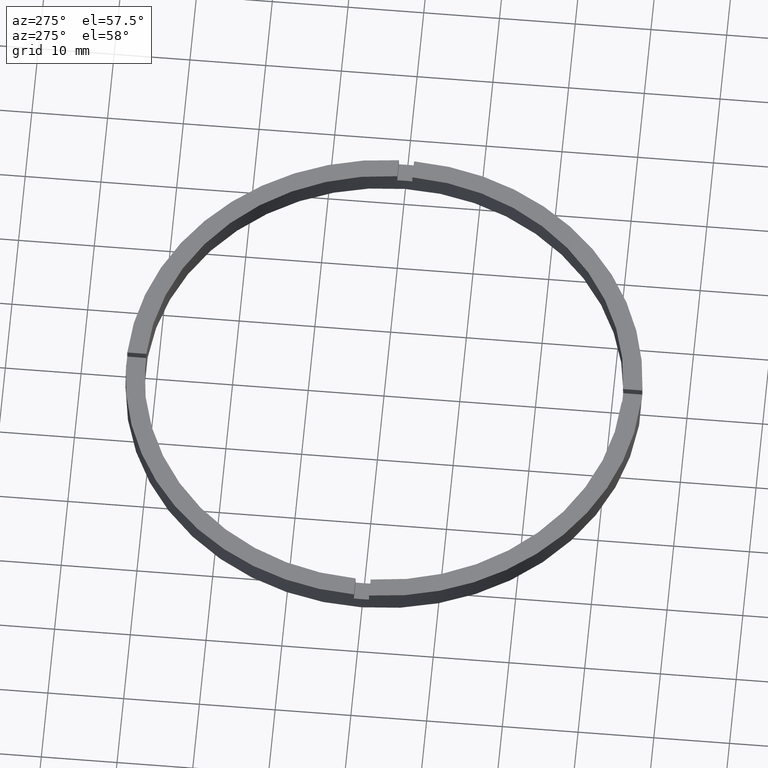
[diagram: clean part render]
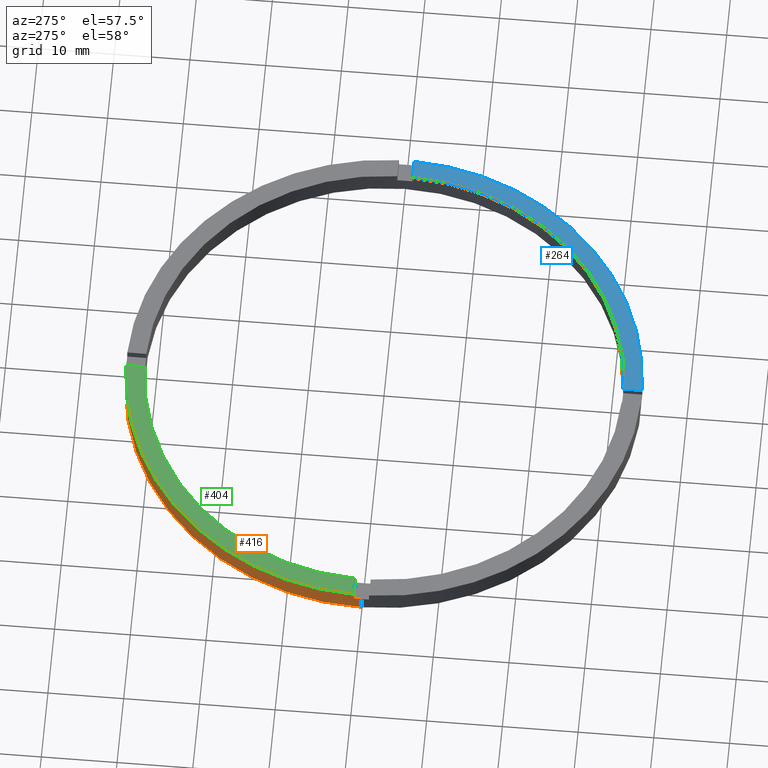
[diagram: same view with three faces highlighted in distinct colors, each labeled with its STEP entity id]
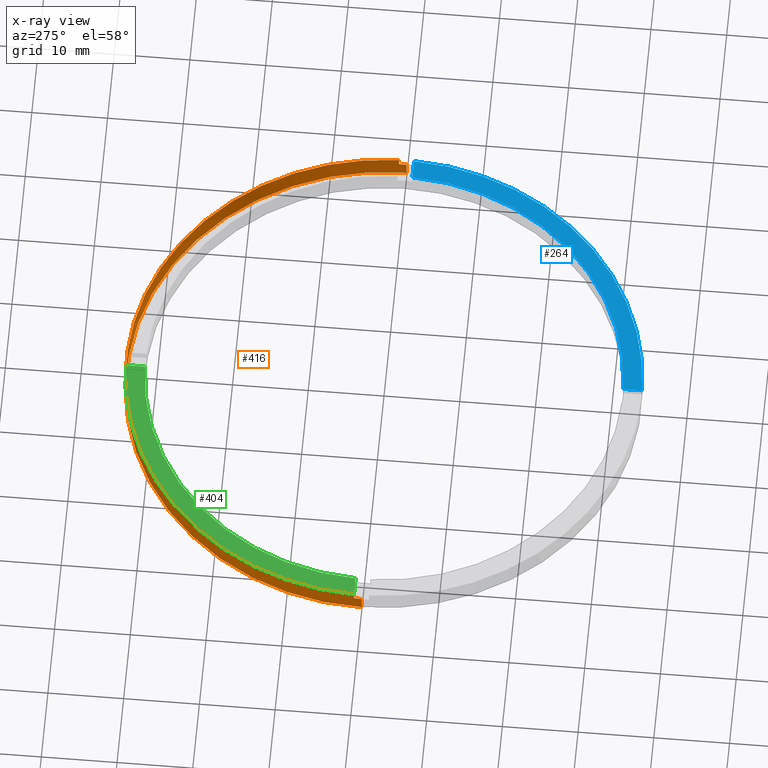
[diagram: x-ray of the same camera — body ghosted, the three highlighted faces saturated]
A machine part, auxiliary view with three faces highlighted in distinct colors.
The next image is the same camera in x-ray (body ghosted, the three faces saturated) — at least one of them is partly hidden behind the body in this view.
Their STEP definitions:

[orange] entity #416 — the highlighted cylindrical surface (partial cylindrical patch) has radius 34 mm, axis along (-0, -0, -1).
#1 = EDGE_CURVE ( 'NONE', #319, #489, #498, .T. ) ;
#4 = DIRECTION ( 'NONE',  ( 0.000000000000000000, 0.000000000000000000, 1.000000000000000000 ) ) ;
#15 = EDGE_LOOP ( 'NONE', ( #677, #175, #229, #56, #176, #446, #306, #116, #249, #704, #679, #44 ) ) ;
#27 = DIRECTION ( 'NONE',  ( -0.000000000000000000, -0.000000000000000000, -1.000000000000000000 ) ) ;
#31 = EDGE_CURVE ( 'NONE', #319, #673, #491, .T. ) ;
#32 = EDGE_CURVE ( 'NONE', #594, #302, #744, .T. ) ;
#44 = ORIENTED_EDGE ( 'NONE', *, *, #417, .T. ) ;
#52 = CARTESIAN_POINT ( 'NONE',  ( 34.00000000000000000, 4.163799117101000559E-15, 2.000000000000000000 ) ) ;
#56 = ORIENTED_EDGE ( 'NONE', *, *, #453, .F. ) ;
#68 = VERTEX_POINT ( 'NONE', #334 ) ;
#70 = EDGE_CURVE ( 'NONE', #329, #123, #733, .T. ) ;
#94 = DIRECTION ( 'NONE',  ( 0.000000000000000000, 0.000000000000000000, 1.000000000000000000 ) ) ;
#99 = VECTOR ( 'NONE', #686, 1000.000000000000000 ) ;
#101 = LINE ( 'NONE', #349, #396 ) ;
#103 = DIRECTION ( 'NONE',  ( -1.000000000000000000, 0.000000000000000000, 0.000000000000000000 ) ) ;
#116 = ORIENTED_EDGE ( 'NONE', *, *, #70, .T. ) ;
#118 = CIRCLE ( 'NONE', #499, 34.00000000000000000 ) ;
#122 = CYLINDRICAL_SURFACE ( 'NONE', #431, 34.00000000000000000 ) ;
#123 = VERTEX_POINT ( 'NONE', #196 ) ;
#134 = EDGE_CURVE ( 'NONE', #329, #673, #762, .T. ) ;
#165 = CARTESIAN_POINT ( 'NONE',  ( -33.98529093593285921, 0.9999999999999735767, 3.000000000000000000 ) ) ;
#168 = VECTOR ( 'NONE', #4, 1000.000000000000000 ) ;
#170 = CARTESIAN_POINT ( 'NONE',  ( 0.000000000000000000, 0.000000000000000000, 0.000000000000000000 ) ) ;
#175 = ORIENTED_EDGE ( 'NONE', *, *, #378, .T. ) ;
#176 = ORIENTED_EDGE ( 'NONE', *, *, #1, .F. ) ;
#188 = CARTESIAN_POINT ( 'NONE',  ( 0.000000000000000000, 0.000000000000000000, 2.000000000000000000 ) ) ;
#194 = EDGE_CURVE ( 'NONE', #449, #123, #521, .T. ) ;
#196 = CARTESIAN_POINT ( 'NONE',  ( -1.000000000000024869, 33.98529093593285211, 2.000000000000000000 ) ) ;
#202 = DIRECTION ( 'NONE',  ( 0.000000000000000000, 0.000000000000000000, 1.000000000000000000 ) ) ;
#208 = CARTESIAN_POINT ( 'NONE',  ( -1.000000000000024869, 33.98529093593285211, 3.000000000000000000 ) ) ;
#210 = DIRECTION ( 'NONE',  ( 1.000000000000000000, 0.000000000000000000, 0.000000000000000000 ) ) ;
#214 = VERTEX_POINT ( 'NONE', #757 ) ;
#216 = DIRECTION ( 'NONE',  ( 1.000000000000000000, 0.000000000000000000, 0.000000000000000000 ) ) ;
#227 = VECTOR ( 'NONE', #27, 1000.000000000000000 ) ;
#229 = ORIENTED_EDGE ( 'NONE', *, *, #315, .T. ) ;
#249 = ORIENTED_EDGE ( 'NONE', *, *, #194, .F. ) ;
#259 = AXIS2_PLACEMENT_3D ( 'NONE', #691, #202, #288 ) ;
#261 = CARTESIAN_POINT ( 'NONE',  ( 0.000000000000000000, 0.000000000000000000, 3.000000000000000000 ) ) ;
#288 = DIRECTION ( 'NONE',  ( 1.000000000000000000, 0.000000000000000000, 0.000000000000000000 ) ) ;
#301 = DIRECTION ( 'NONE',  ( 1.000000000000000000, 0.000000000000000000, 0.000000000000000000 ) ) ;
#302 = VERTEX_POINT ( 'NONE', #488 ) ;
#306 = ORIENTED_EDGE ( 'NONE', *, *, #134, .F. ) ;
#315 = EDGE_CURVE ( 'NONE', #214, #68, #118, .T. ) ;
#319 = VERTEX_POINT ( 'NONE', #597 ) ;
#329 = VERTEX_POINT ( 'NONE', #208 ) ;
#334 = CARTESIAN_POINT ( 'NONE',  ( -34.00000000000000000, 0.000000000000000000, 0.000000000000000000 ) ) ;
#344 = AXIS2_PLACEMENT_3D ( 'NONE', #430, #763, #216 ) ;
#349 = CARTESIAN_POINT ( 'NONE',  ( 34.00000000000000000, 4.163799117101000559E-15, 3.000000000000000000 ) ) ;
#377 = LINE ( 'NONE', #432, #383 ) ;
#378 = EDGE_CURVE ( 'NONE', #698, #214, #101, .T. ) ;
#379 = DIRECTION ( 'NONE',  ( 0.000000000000000000, 0.000000000000000000, 1.000000000000000000 ) ) ;
#383 = VECTOR ( 'NONE', #616, 1000.000000000000000 ) ;
#396 = VECTOR ( 'NONE', #435, 1000.000000000000000 ) ;
#413 = VERTEX_POINT ( 'NONE', #718 ) ;
#416 = ADVANCED_FACE ( 'NONE', ( #656 ), #122, .T. ) ;
#417 = EDGE_CURVE ( 'NONE', #594, #413, #377, .T. ) ;
#423 = CARTESIAN_POINT ( 'NONE',  ( -1.000000000000024869, 33.98529093593285211, 3.000000000000000000 ) ) ;
#430 = CARTESIAN_POINT ( 'NONE',  ( 0.000000000000000000, 0.000000000000000000, 3.000000000000000000 ) ) ;
#431 = AXIS2_PLACEMENT_3D ( 'NONE', #533, #771, #103 ) ;
#432 = CARTESIAN_POINT ( 'NONE',  ( 33.98529093593285921, 0.9999999999998419042, 3.000000000000000000 ) ) ;
#435 = DIRECTION ( 'NONE',  ( -0.000000000000000000, -0.000000000000000000, -1.000000000000000000 ) ) ;
#437 = LINE ( 'NONE', #734, #168 ) ;
#439 = AXIS2_PLACEMENT_3D ( 'NONE', #261, #736, #301 ) ;
#446 = ORIENTED_EDGE ( 'NONE', *, *, #31, .T. ) ;
#449 = VERTEX_POINT ( 'NONE', #478 ) ;
#453 = EDGE_CURVE ( 'NONE', #489, #68, #653, .T. ) ;
#455 = AXIS2_PLACEMENT_3D ( 'NONE', #188, #379, #495 ) ;
#474 = CARTESIAN_POINT ( 'NONE',  ( -34.00000000000000000, 0.000000000000000000, 2.000000000000000000 ) ) ;
#478 = CARTESIAN_POINT ( 'NONE',  ( 0.9999999999999751310, 33.98529093593285921, 2.000000000000000000 ) ) ;
#488 = CARTESIAN_POINT ( 'NONE',  ( 0.9999999999999751310, 33.98529093593285921, 3.000000000000000000 ) ) ;
#489 = VERTEX_POINT ( 'NONE', #474 ) ;
#491 = LINE ( 'NONE', #165, #507 ) ;
#495 = DIRECTION ( 'NONE',  ( 1.000000000000000000, 0.000000000000000000, 0.000000000000000000 ) ) ;
#498 = CIRCLE ( 'NONE', #455, 34.00000000000000000 ) ;
#499 = AXIS2_PLACEMENT_3D ( 'NONE', #170, #755, #538 ) ;
#507 = VECTOR ( 'NONE', #94, 1000.000000000000000 ) ;
#521 = CIRCLE ( 'NONE', #775, 34.00000000000000000 ) ;
#533 = CARTESIAN_POINT ( 'NONE',  ( 0.000000000000000000, 0.000000000000000000, 3.000000000000000000 ) ) ;
#538 = DIRECTION ( 'NONE',  ( 1.000000000000000000, 0.000000000000000000, 0.000000000000000000 ) ) ;
#549 = CARTESIAN_POINT ( 'NONE',  ( 0.000000000000000000, 0.000000000000000000, 2.000000000000000000 ) ) ;
#594 = VERTEX_POINT ( 'NONE', #667 ) ;
#597 = CARTESIAN_POINT ( 'NONE',  ( -33.98529093593285921, 0.9999999999999735767, 2.000000000000000000 ) ) ;
#599 = CARTESIAN_POINT ( 'NONE',  ( -34.00000000000000000, 0.000000000000000000, 3.000000000000000000 ) ) ;
#610 = EDGE_CURVE ( 'NONE', #698, #413, #694, .T. ) ;
#616 = DIRECTION ( 'NONE',  ( -0.000000000000000000, -0.000000000000000000, -1.000000000000000000 ) ) ;
#653 = LINE ( 'NONE', #599, #99 ) ;
#656 = FACE_OUTER_BOUND ( 'NONE', #15, .T. ) ;
#667 = CARTESIAN_POINT ( 'NONE',  ( 33.98529093593285921, 0.9999999999998419042, 3.000000000000000000 ) ) ;
#673 = VERTEX_POINT ( 'NONE', #731 ) ;
#677 = ORIENTED_EDGE ( 'NONE', *, *, #610, .F. ) ;
#679 = ORIENTED_EDGE ( 'NONE', *, *, #32, .F. ) ;
#683 = EDGE_CURVE ( 'NONE', #449, #302, #437, .T. ) ;
#686 = DIRECTION ( 'NONE',  ( -0.000000000000000000, -0.000000000000000000, -1.000000000000000000 ) ) ;
#691 = CARTESIAN_POINT ( 'NONE',  ( 0.000000000000000000, 0.000000000000000000, 2.000000000000000000 ) ) ;
#694 = CIRCLE ( 'NONE', #259, 34.00000000000000000 ) ;
#698 = VERTEX_POINT ( 'NONE', #52 ) ;
#704 = ORIENTED_EDGE ( 'NONE', *, *, #683, .T. ) ;
#714 = DIRECTION ( 'NONE',  ( 0.000000000000000000, -0.000000000000000000, 1.000000000000000000 ) ) ;
#718 = CARTESIAN_POINT ( 'NONE',  ( 33.98529093593285921, 0.9999999999998419042, 2.000000000000000000 ) ) ;
#731 = CARTESIAN_POINT ( 'NONE',  ( -33.98529093593285921, 0.9999999999999735767, 3.000000000000000000 ) ) ;
#733 = LINE ( 'NONE', #423, #227 ) ;
#734 = CARTESIAN_POINT ( 'NONE',  ( 0.9999999999999751310, 33.98529093593285921, 3.000000000000000000 ) ) ;
#736 = DIRECTION ( 'NONE',  ( 0.000000000000000000, 0.000000000000000000, 1.000000000000000000 ) ) ;
#744 = CIRCLE ( 'NONE', #344, 34.00000000000000000 ) ;
#755 = DIRECTION ( 'NONE',  ( 0.000000000000000000, 0.000000000000000000, 1.000000000000000000 ) ) ;
#757 = CARTESIAN_POINT ( 'NONE',  ( 34.00000000000000000, 4.163799117101000559E-15, 0.000000000000000000 ) ) ;
#762 = CIRCLE ( 'NONE', #439, 34.00000000000000000 ) ;
#763 = DIRECTION ( 'NONE',  ( 0.000000000000000000, 0.000000000000000000, 1.000000000000000000 ) ) ;
#771 = DIRECTION ( 'NONE',  ( -0.000000000000000000, -0.000000000000000000, -1.000000000000000000 ) ) ;
#775 = AXIS2_PLACEMENT_3D ( 'NONE', #549, #714, #210 ) ;

[blue] entity #264 — the highlighted planar face has unit normal (0, 0, 1).
#2 = PLANE ( 'NONE',  #467 ) ;
#22 = CARTESIAN_POINT ( 'NONE',  ( 31.48412298286232414, -1.000000000000158318, 3.000000000000000000 ) ) ;
#25 = DIRECTION ( 'NONE',  ( 1.000000000000000000, 0.000000000000000000, 0.000000000000000000 ) ) ;
#50 = VERTEX_POINT ( 'NONE', #22 ) ;
#53 = EDGE_LOOP ( 'NONE', ( #573, #411, #242, #448 ) ) ;
#75 = DIRECTION ( 'NONE',  ( 0.000000000000000000, 0.000000000000000000, 1.000000000000000000 ) ) ;
#85 = AXIS2_PLACEMENT_3D ( 'NONE', #272, #75, #222 ) ;
#102 = CIRCLE ( 'NONE', #85, 34.00000000000000000 ) ;
#112 = EDGE_CURVE ( 'NONE', #395, #180, #218, .T. ) ;
#137 = CARTESIAN_POINT ( 'NONE',  ( 0.000000000000000000, 0.000000000000000000, 3.000000000000000000 ) ) ;
#172 = AXIS2_PLACEMENT_3D ( 'NONE', #185, #777, #25 ) ;
#180 = VERTEX_POINT ( 'NONE', #405 ) ;
#184 = EDGE_CURVE ( 'NONE', #50, #384, #770, .T. ) ;
#185 = CARTESIAN_POINT ( 'NONE',  ( 0.000000000000000000, 0.000000000000000000, 3.000000000000000000 ) ) ;
#192 = DIRECTION ( 'NONE',  ( 1.000000000000000000, 0.000000000000000000, -0.000000000000000000 ) ) ;
#218 = LINE ( 'NONE', #697, #493 ) ;
#222 = DIRECTION ( 'NONE',  ( 1.000000000000000000, 0.000000000000000000, 0.000000000000000000 ) ) ;
#242 = ORIENTED_EDGE ( 'NONE', *, *, #112, .F. ) ;
#264 = ADVANCED_FACE ( 'NONE', ( #374 ), #2, .T. ) ;
#272 = CARTESIAN_POINT ( 'NONE',  ( 0.000000000000000000, 0.000000000000000000, 3.000000000000000000 ) ) ;
#312 = DIRECTION ( 'NONE',  ( 1.000000000000000000, 6.505213034913025371E-17, 0.000000000000000000 ) ) ;
#321 = EDGE_CURVE ( 'NONE', #395, #384, #102, .T. ) ;
#374 = FACE_OUTER_BOUND ( 'NONE', #53, .T. ) ;
#384 = VERTEX_POINT ( 'NONE', #475 ) ;
#395 = VERTEX_POINT ( 'NONE', #672 ) ;
#405 = CARTESIAN_POINT ( 'NONE',  ( 0.9999999999998391287, -31.48412298286233479, 3.000000000000000000 ) ) ;
#411 = ORIENTED_EDGE ( 'NONE', *, *, #523, .F. ) ;
#448 = ORIENTED_EDGE ( 'NONE', *, *, #321, .T. ) ;
#459 = CARTESIAN_POINT ( 'NONE',  ( 23.99999999999999289, -1.000000000000158762, 3.000000000000000000 ) ) ;
#467 = AXIS2_PLACEMENT_3D ( 'NONE', #137, #543, #192 ) ;
#475 = CARTESIAN_POINT ( 'NONE',  ( 33.98529093593285211, -1.000000000000158096, 3.000000000000000000 ) ) ;
#493 = VECTOR ( 'NONE', #527, 1000.000000000000000 ) ;
#519 = VECTOR ( 'NONE', #312, 1000.000000000000000 ) ;
#523 = EDGE_CURVE ( 'NONE', #180, #50, #646, .T. ) ;
#527 = DIRECTION ( 'NONE',  ( -1.301042606982605074E-16, 1.000000000000000000, -0.000000000000000000 ) ) ;
#543 = DIRECTION ( 'NONE',  ( 0.000000000000000000, 0.000000000000000000, 1.000000000000000000 ) ) ;
#573 = ORIENTED_EDGE ( 'NONE', *, *, #184, .F. ) ;
#646 = CIRCLE ( 'NONE', #172, 31.50000000000000000 ) ;
#672 = CARTESIAN_POINT ( 'NONE',  ( 0.9999999999998393507, -33.98529093593285921, 3.000000000000000000 ) ) ;
#697 = CARTESIAN_POINT ( 'NONE',  ( 0.9999999999998380185, -24.00000000000018119, 3.000000000000000000 ) ) ;
#770 = LINE ( 'NONE', #459, #519 ) ;
#777 = DIRECTION ( 'NONE',  ( 0.000000000000000000, 0.000000000000000000, 1.000000000000000000 ) ) ;

[green] entity #404 — the highlighted planar face has unit normal (0, 0, 1).
#134 = EDGE_CURVE ( 'NONE', #329, #673, #762, .T. ) ;
#161 = EDGE_CURVE ( 'NONE', #329, #598, #231, .T. ) ;
#173 = ORIENTED_EDGE ( 'NONE', *, *, #134, .T. ) ;
#197 = AXIS2_PLACEMENT_3D ( 'NONE', #552, #280, #663 ) ;
#200 = CARTESIAN_POINT ( 'NONE',  ( -1.000000000000024869, 24.00000000000000000, 3.000000000000000000 ) ) ;
#201 = EDGE_CURVE ( 'NONE', #598, #513, #772, .T. ) ;
#206 = AXIS2_PLACEMENT_3D ( 'NONE', #320, #414, #468 ) ;
#208 = CARTESIAN_POINT ( 'NONE',  ( -1.000000000000024869, 33.98529093593285211, 3.000000000000000000 ) ) ;
#231 = LINE ( 'NONE', #200, #511 ) ;
#261 = CARTESIAN_POINT ( 'NONE',  ( 0.000000000000000000, 0.000000000000000000, 3.000000000000000000 ) ) ;
#263 = DIRECTION ( 'NONE',  ( -0.000000000000000000, -1.000000000000000000, -0.000000000000000000 ) ) ;
#274 = CARTESIAN_POINT ( 'NONE',  ( -31.48412298286233124, 0.9999999999999742428, 3.000000000000000000 ) ) ;
#280 = DIRECTION ( 'NONE',  ( 0.000000000000000000, 0.000000000000000000, 1.000000000000000000 ) ) ;
#301 = DIRECTION ( 'NONE',  ( 1.000000000000000000, 0.000000000000000000, 0.000000000000000000 ) ) ;
#311 = ORIENTED_EDGE ( 'NONE', *, *, #201, .F. ) ;
#320 = CARTESIAN_POINT ( 'NONE',  ( 0.000000000000000000, 0.000000000000000000, 3.000000000000000000 ) ) ;
#329 = VERTEX_POINT ( 'NONE', #208 ) ;
#394 = VECTOR ( 'NONE', #514, 1000.000000000000000 ) ;
#404 = ADVANCED_FACE ( 'NONE', ( #608 ), #441, .T. ) ;
#414 = DIRECTION ( 'NONE',  ( 0.000000000000000000, 0.000000000000000000, 1.000000000000000000 ) ) ;
#429 = ORIENTED_EDGE ( 'NONE', *, *, #605, .F. ) ;
#439 = AXIS2_PLACEMENT_3D ( 'NONE', #261, #736, #301 ) ;
#441 = PLANE ( 'NONE',  #197 ) ;
#468 = DIRECTION ( 'NONE',  ( 1.000000000000000000, 0.000000000000000000, 0.000000000000000000 ) ) ;
#500 = CARTESIAN_POINT ( 'NONE',  ( -1.000000000000024869, 31.48412298286233124, 3.000000000000000000 ) ) ;
#511 = VECTOR ( 'NONE', #263, 1000.000000000000000 ) ;
#513 = VERTEX_POINT ( 'NONE', #274 ) ;
#514 = DIRECTION ( 'NONE',  ( -1.000000000000000000, -1.951563910473907735E-16, 0.000000000000000000 ) ) ;
#552 = CARTESIAN_POINT ( 'NONE',  ( 0.000000000000000000, 0.000000000000000000, 3.000000000000000000 ) ) ;
#575 = ORIENTED_EDGE ( 'NONE', *, *, #161, .F. ) ;
#584 = EDGE_LOOP ( 'NONE', ( #575, #173, #429, #311 ) ) ;
#598 = VERTEX_POINT ( 'NONE', #500 ) ;
#605 = EDGE_CURVE ( 'NONE', #513, #673, #650, .T. ) ;
#608 = FACE_OUTER_BOUND ( 'NONE', #584, .T. ) ;
#650 = LINE ( 'NONE', #700, #394 ) ;
#663 = DIRECTION ( 'NONE',  ( 1.000000000000000000, 0.000000000000000000, -0.000000000000000000 ) ) ;
#673 = VERTEX_POINT ( 'NONE', #731 ) ;
#700 = CARTESIAN_POINT ( 'NONE',  ( -24.00000000000018829, 0.9999999999999754641, 3.000000000000000000 ) ) ;
#731 = CARTESIAN_POINT ( 'NONE',  ( -33.98529093593285921, 0.9999999999999735767, 3.000000000000000000 ) ) ;
#736 = DIRECTION ( 'NONE',  ( 0.000000000000000000, 0.000000000000000000, 1.000000000000000000 ) ) ;
#762 = CIRCLE ( 'NONE', #439, 34.00000000000000000 ) ;
#772 = CIRCLE ( 'NONE', #206, 31.50000000000000000 ) ;